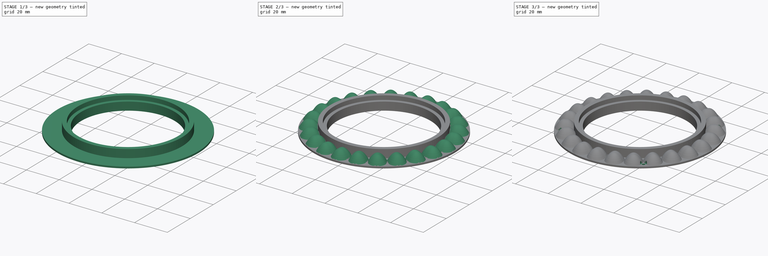
[diagram: build sequence overview — one tinted view per stage of 3, left to right]
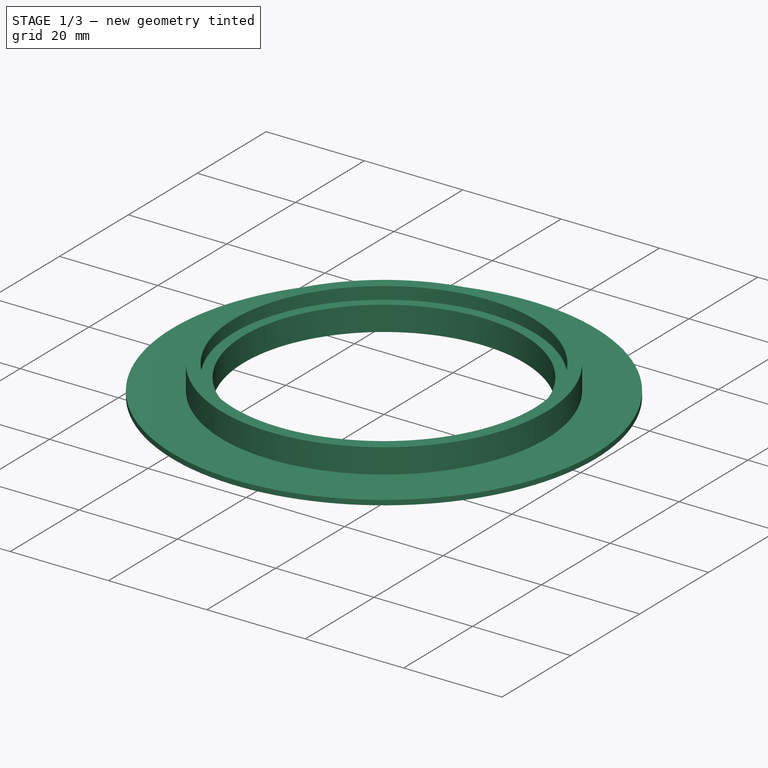
[diagram: stage 1 of 3 — iso view after this stage's code; geometry added in this stage tinted green]
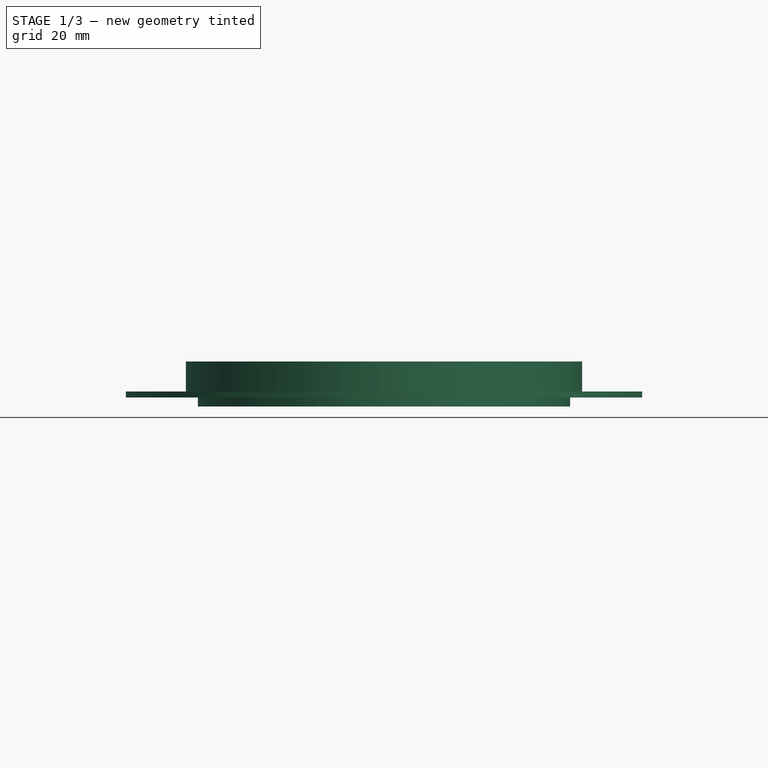
[diagram: stage 1 of 3 — front view after this stage's code; geometry added in this stage tinted green]
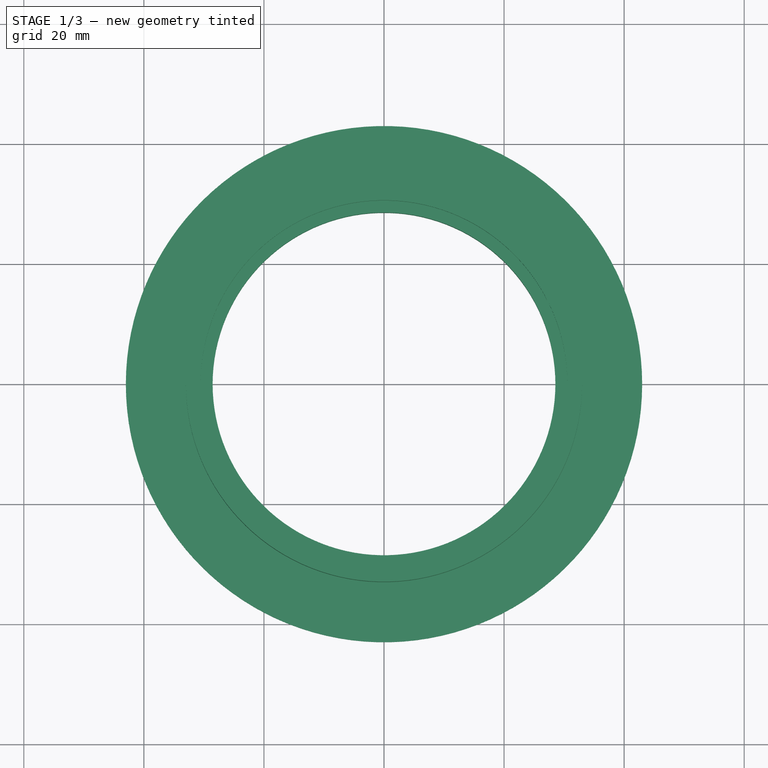
[diagram: stage 1 of 3 — top view after this stage's code; geometry added in this stage tinted green]
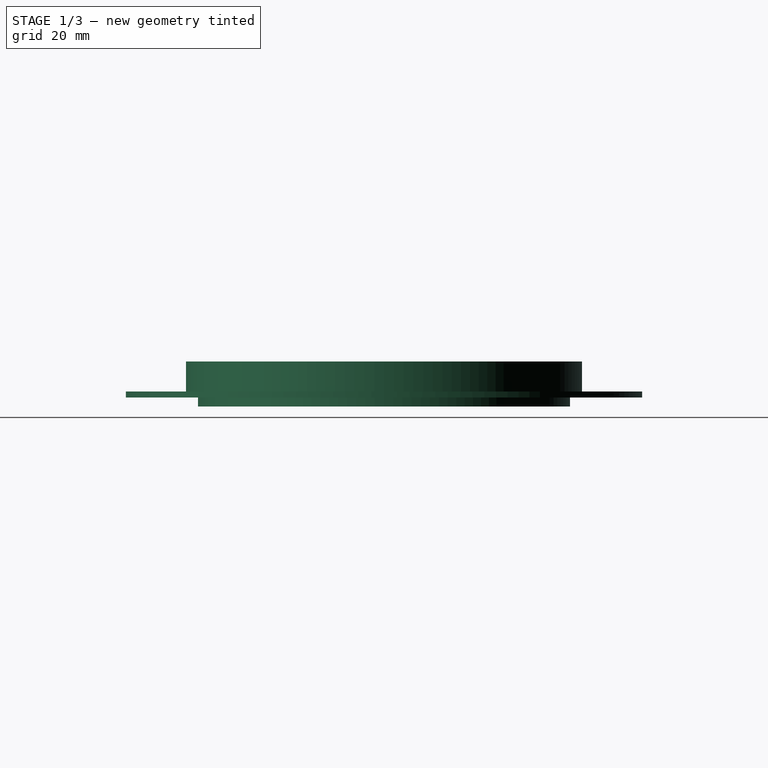
[diagram: stage 1 of 3 — right view after this stage's code; geometry added in this stage tinted green]
FCSTD DOCUMENT  (FreeCAD 0.21R33771 (Git))
Label: lens
License: All rights reserved
LicenseURL: https://en.wikipedia.org/wiki/All_rights_reserved
objects: Sketcher::SketchObject×4, PartDesign::Pad×2, PartDesign::Revolution×2, PartDesign::Mirrored×2, PartDesign::PolarPattern×2, PartDesign::Body×2, PartDesign::MultiTransform×2, PartDesign::Plane×1, PartDesign::Hole×1, App::Part×1
note: 23 computed .brp shape members not serialized (recipe doc carries the construction recipe); baked Part::Feature solids carry a one-line shape summary decoded from their .brp

FEATURE [Sketcher::SketchObject] Sketch
  FullyConstrained = true
  MapMode = 5
  Support = -> [XY_Plane]
  sketch-geometry (2):
    g0: Circle CenterX=0 CenterY=0 CenterZ=0 NormalX=0 NormalY=0 NormalZ=1 AngleXU=0 Radius=31.5
    g1: Circle CenterX=0 CenterY=0 CenterZ=0 NormalX=0 NormalY=0 NormalZ=1 AngleXU=0 Radius=43
  constraints (4):
    c: Coincident(g0,g-1)
    c: Diameter(g0) = 63
    c: Coincident(g1,g0)
    c: Diameter(g1) = 86
FEATURE [PartDesign::Pad] Pad
  Direction = (0,0,1)
  Length = 1
  Length2 = 10
  Profile = -> Sketch
  ReferenceAxis = -> Sketch [N_Axis]
  Reversed = true
  Type = 0
FEATURE [PartDesign::Mirrored] Mirrored
  MirrorPlane = -> DatumPlane001
FEATURE [PartDesign::Mirrored] Mirrored001
  MirrorPlane = -> YZ_Plane
FEATURE [Sketcher::SketchObject] Sketch003
  AttachmentOffset = pos=(0,0,10) rot=(0,0,1;0rad)
  FullyConstrained = true
  MapMode = 5
  Placement = pos=(0,0,10) rot=(0,0,1;0rad)
  Support = -> [XY_Plane]
  sketch-geometry (2):
    g0: Circle CenterX=-31.9761 CenterY=-24.5361 CenterZ=0 NormalX=0 NormalY=0 NormalZ=1 AngleXU=0 Radius=0.8
    g1: LineSegment StartX=-31.9761 StartY=-24.5361 StartZ=0 EndX=-3.6e-15 EndY=0 EndZ=0
  constraints (5):
    c: Diameter(g0) = 1.6
    c: Coincident(g1,g0)
    c: Coincident(g1,g-1)
    c: Angle(g1,g-1) = 2.48709
    c: Distance(g1) = 40.305
FEATURE [PartDesign::PolarPattern] PolarPattern001
  Angle = 270
  Axis = -> Z_Axis
  Occurrences = 4
  Reversed = true
FEATURE [Sketcher::SketchObject] Sketch004
  FullyConstrained = true
  MapMode = 5
  Placement = pos=(0,0,0) rot=(1,0,0;1.5708rad)
  Support = -> [XZ_Plane003]
  sketch-geometry (8):
    g0: LineSegment StartX=-33 StartY=0 StartZ=0 EndX=-33 EndY=5 EndZ=0
    g1: LineSegment StartX=-33 StartY=5 StartZ=0 EndX=-30.55 EndY=5 EndZ=0
    g2: LineSegment StartX=-30.55 StartY=5 StartZ=0 EndX=-30.55 EndY=2.5 EndZ=0
    g3: LineSegment StartX=-33 StartY=0 StartZ=0 EndX=-31 EndY=0 EndZ=0
    g4: LineSegment StartX=-31 StartY=0 StartZ=0 EndX=-31 EndY=-2.5 EndZ=0
    g5: LineSegment StartX=-31 StartY=-2.5 StartZ=0 EndX=-28.55 EndY=-2.5 EndZ=0
    g6: LineSegment StartX=-30.55 StartY=2.5 StartZ=0 EndX=-28.55 EndY=2.5 EndZ=0
    g7: LineSegment StartX=-28.55 StartY=2.5 StartZ=0 EndX=-28.55 EndY=-2.5 EndZ=0
  constraints (26):
    c: PointOnObject(g0,g-1)
    c: Vertical(g0)
    c: Coincident(g1,g0)
    c: Horizontal(g1)
    c: Coincident(g2,g1)
    c: Vertical(g2)
    c: Coincident(g3,g0)
    c: PointOnObject(g3,g-1)
    c: Coincident(g4,g3)
    c: Vertical(g4)
    c: Coincident(g5,g4)
    c: Horizontal(g5)
    c: Coincident(g6,g2)
    c: Horizontal(g6)
    c: Coincident(g7,g6)
    c: Coincident(g7,g5)
    c: Vertical(g7)
    c: Vertical(g6,g5)
    c: DistanceX(g4,g-1) = 31
    c: DistanceX(g0,g4) = 2
    c: DistanceY(g0,g0) = 5
    c: DistanceY(g2,g1) = 2.5
    c: DistanceY(g4,g3) = 2.5
    c: DistanceX(g1,g-1) = 30.55
    c: DistanceX(g0,g1) = 2.45
    c: DistanceX(g4,g5) = 2.45
FEATURE [PartDesign::Revolution] Revolution
  Angle = 360
  Axis = (0,-2e-16,1)
  Base = (0,0,0)
  Placement = pos=(0,0,0) rot=(1,0,0;1.5708rad)
  Profile = -> Sketch004
  ReferenceAxis = -> Sketch004 [V_Axis]
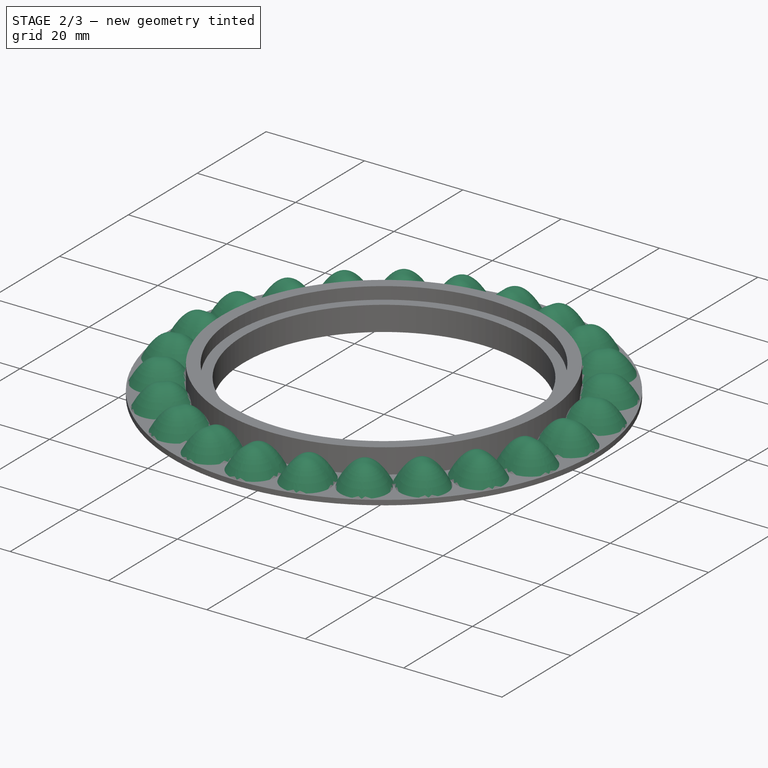
[diagram: stage 2 of 3 — iso view after this stage's code; geometry added in this stage tinted green]
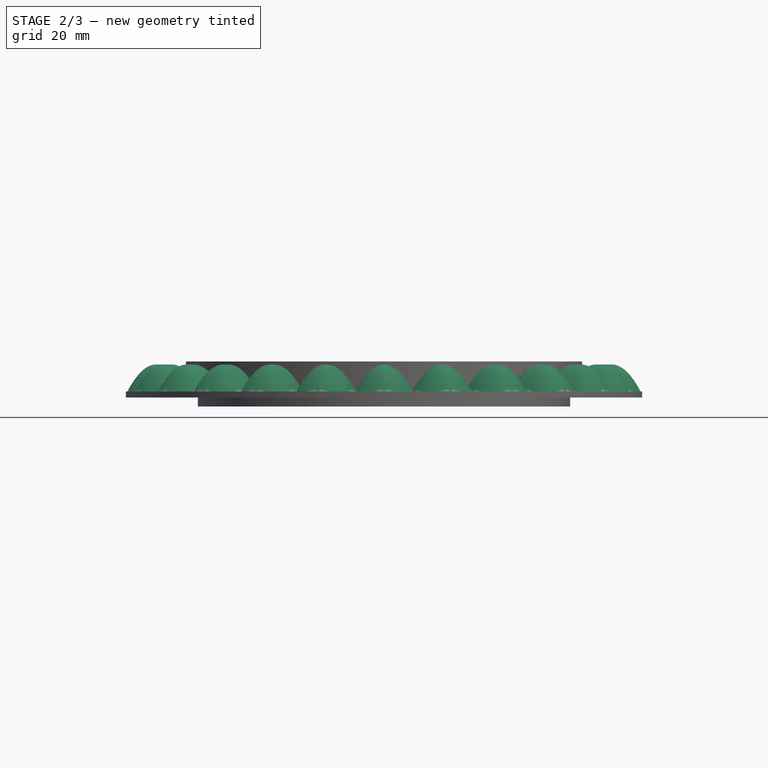
[diagram: stage 2 of 3 — front view after this stage's code; geometry added in this stage tinted green]
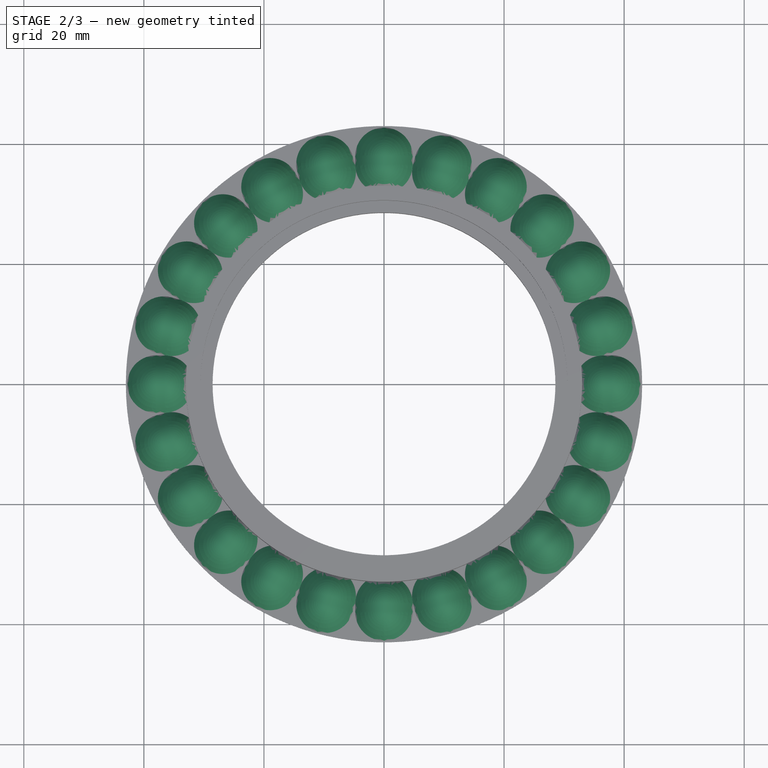
[diagram: stage 2 of 3 — top view after this stage's code; geometry added in this stage tinted green]
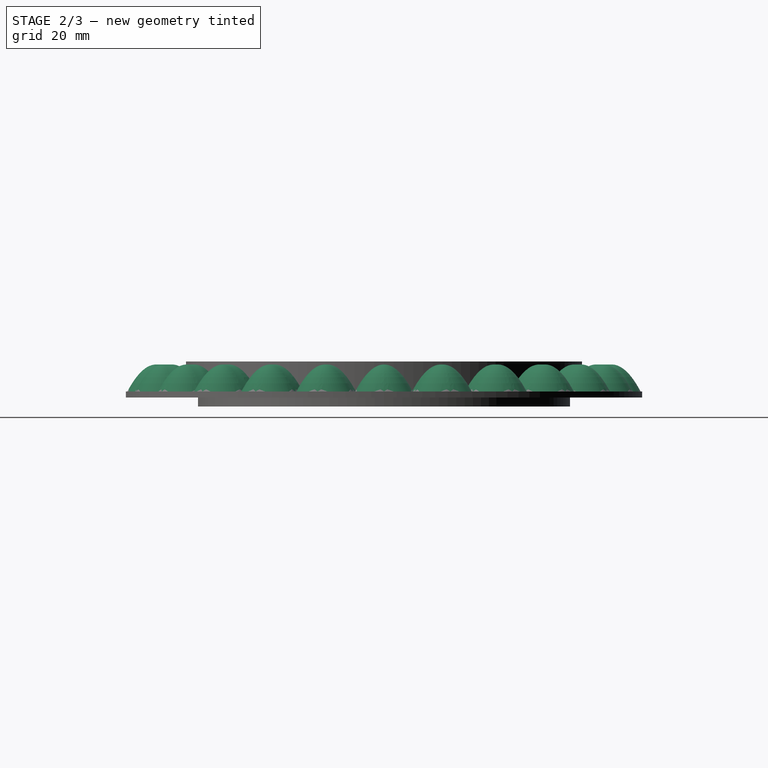
[diagram: stage 2 of 3 — right view after this stage's code; geometry added in this stage tinted green]
FEATURE [PartDesign::Plane] DatumPlane001
  AttachmentOffset = pos=(0,0,37.25) rot=(0,0,1;0rad)
  Length = 99.1149
  MapMode = 5
  Placement = pos=(0,-37.25,-8.3e-15) rot=(1,0,0;1.5708rad)
  ResizeMode = 0
  Support = -> [XZ_Plane]
  Width = 63.1149
FEATURE [Sketcher::SketchObject] Sketch002
  AttachmentOffset = pos=(0,0,0.7) rot=(0,0,1;0rad)
  FullyConstrained = true
  MapMode = 5
  Placement = pos=(0,-37.95,-8.4e-15) rot=(1,0,0;1.5708rad)
  Support = -> [DatumPlane001]
  sketch-geometry (5):
    g0: ArcOfParabola CenterX=0 CenterY=4.5 CenterZ=0 NormalX=0 NormalY=0 NormalZ=1 Focal=1.28 AngleXU=-1.5708 StartAngle=-4.8 EndAngle=0
    g1: GeomPoint X=0 Y=3.22 Z=0
    g2: LineSegment StartX=0 StartY=4.5 StartZ=0 EndX=0 EndY=3.22 EndZ=0
    g3: LineSegment StartX=-4.8 StartY=-9e-16 StartZ=0 EndX=0 EndY=-9e-16 EndZ=0
    g4: LineSegment StartX=0 StartY=-9e-16 StartZ=0 EndX=0 EndY=4.5 EndZ=0
  constraints (12):
    c: InternalAlignment(g1,g0)
    c: InternalAlignment(g2,g0)
    c: DistanceX(g0,g0) = 4.8
    c: DistanceY(g0,g0) = 4.5
    c: Coincident(g3,g0)
    c: Horizontal(g3)
    c: Coincident(g4,g3)
    c: Coincident(g4,g0)
    c: Coincident(g3,g-1)
    c: PointOnObject(g0,g4)
    c: PointOnObject(g0,g-2)
    c: PointOnObject(g1,g4)
FEATURE [PartDesign::Revolution] Revolution001
  Angle = 90
  Axis = (0,-2e-16,1)
  Base = (0,-37.95,-8.4e-15)
  BaseFeature = -> Pad
  Profile = -> Sketch002
  ReferenceAxis = -> Sketch002 [V_Axis]
FEATURE [PartDesign::Pad] Pad002
  BaseFeature = -> Revolution001
  Direction = (0,-1,-2e-16)
  Length = 10
  Length2 = 10
  Profile = -> Sketch002
  ReferenceAxis = -> Sketch002 [N_Axis]
  Reversed = true
  Type = 3
  UpToFace = -> DatumPlane001 [Plane]
FEATURE [PartDesign::Body] Body001  label="Körper001"
  Group = -> [Sketch004,Revolution]
  Origin = -> Origin003
  Placement = pos=(0,0,-4) rot=(0,1,0;3.14159rad)
  Tip = -> Revolution
FEATURE [PartDesign::PolarPattern] PolarPattern
  Angle = 360
  Axis = -> Z_Axis
  Occurrences = 24
FEATURE [PartDesign::MultiTransform] MultiTransform
  BaseFeature = -> Pad002
  Originals = -> [Pad002,Revolution001]
  Transformations = -> [Mirrored,Mirrored001,PolarPattern]
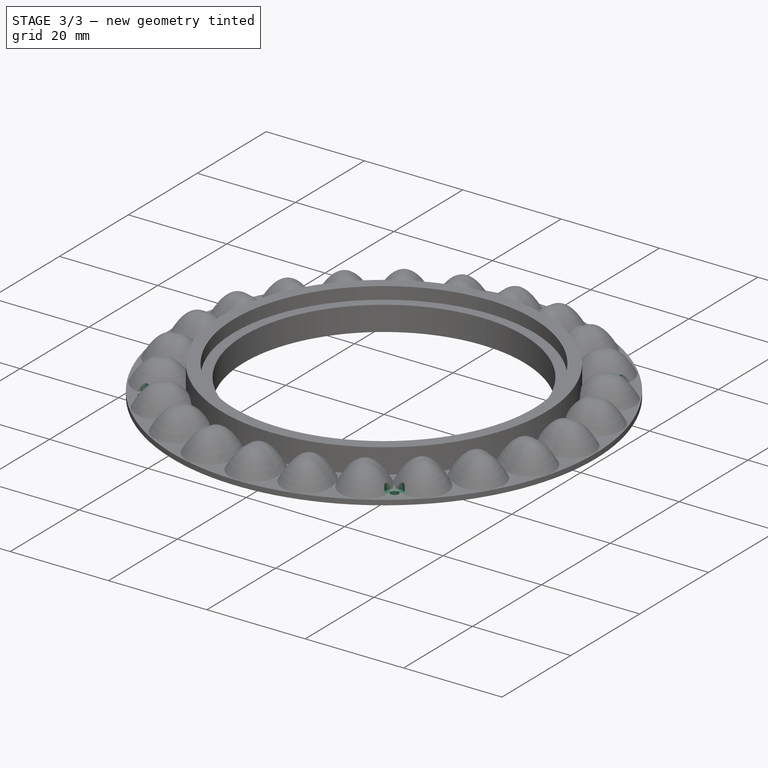
[diagram: stage 3 of 3 — iso view after this stage's code; geometry added in this stage tinted green]
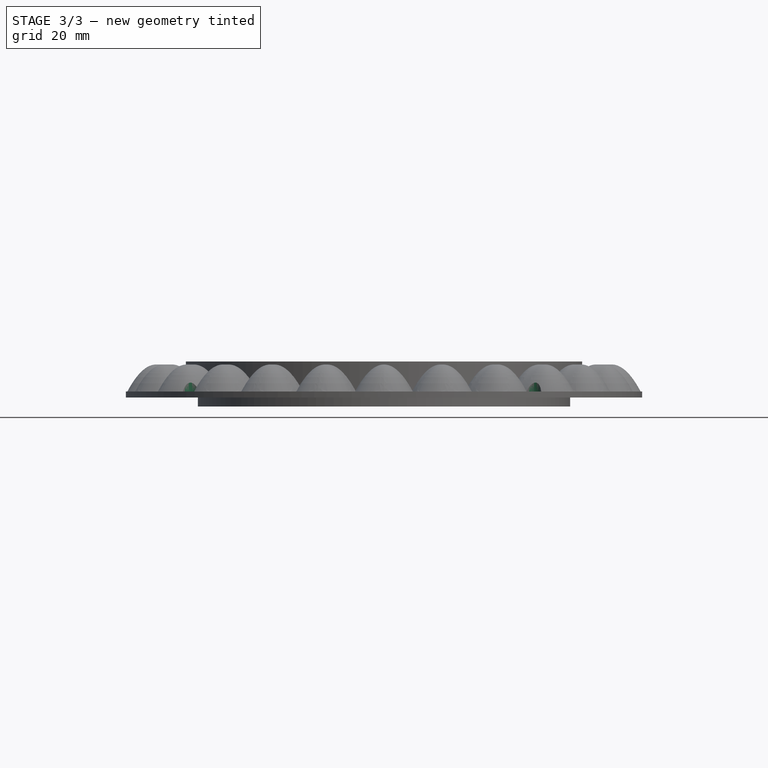
[diagram: stage 3 of 3 — front view after this stage's code; geometry added in this stage tinted green]
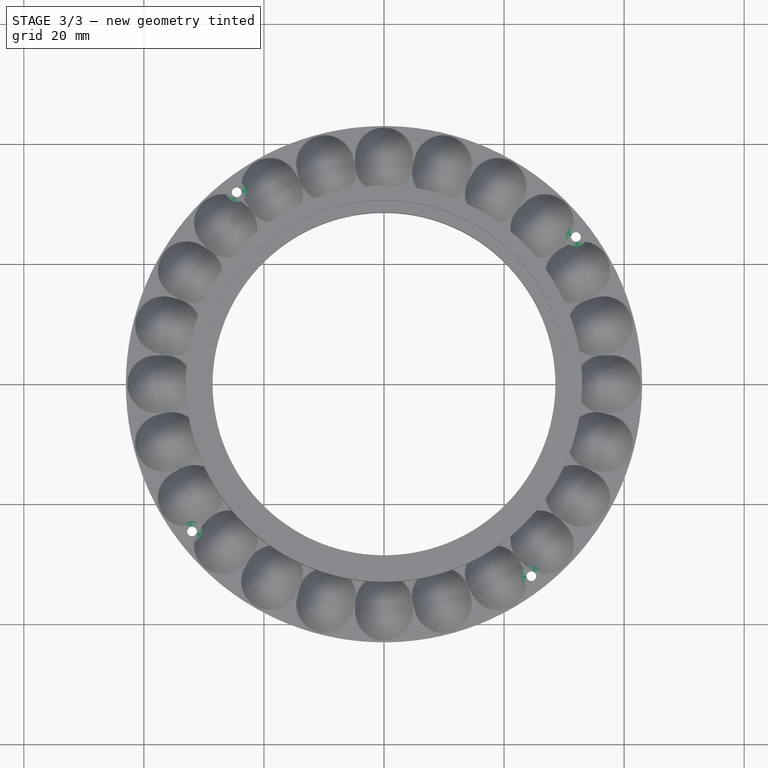
[diagram: stage 3 of 3 — top view after this stage's code; geometry added in this stage tinted green]
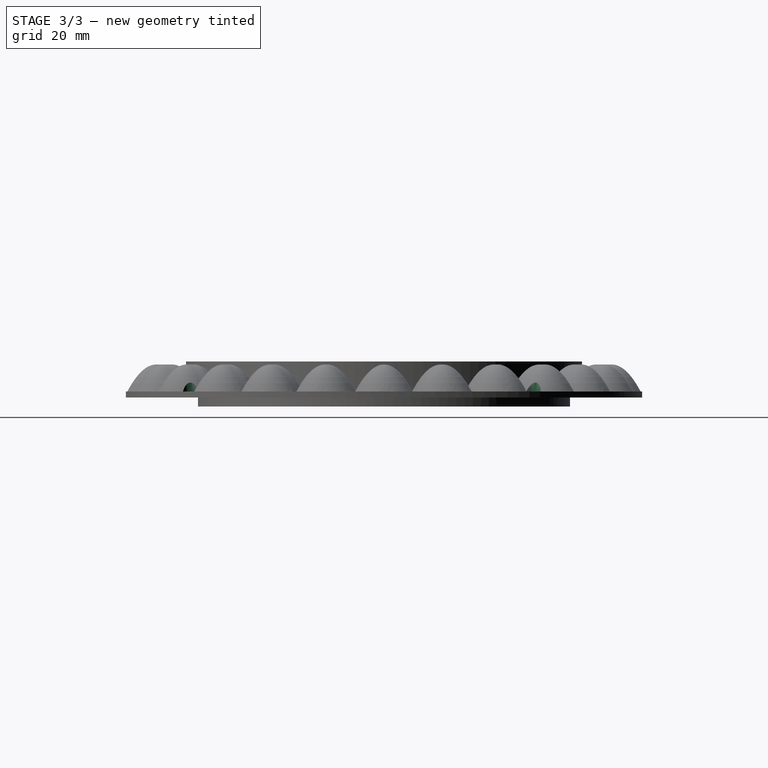
[diagram: stage 3 of 3 — right view after this stage's code; geometry added in this stage tinted green]
FEATURE [PartDesign::Hole] Hole
  BaseFeature = -> MultiTransform
  CustomThreadClearance = 0
  Depth = 245.976
  DepthType = 1
  Diameter = 1.6
  DrillForDepth = false
  DrillPoint = 1
  DrillPointAngle = 118
  HoleCutCountersinkAngle = 90
  HoleCutCustomValues = false
  HoleCutDepth = 10
  HoleCutDiameter = 3.4
  HoleCutType = 1
  ModelThread = false
  Profile = -> Sketch003
  Tapered = false
  TaperedAngle = 90
  ThreadClass = 0
  ThreadDepth = 245.976
  ThreadDepthType = 0
  ThreadDirection = 0
  ThreadFit = 0
  ThreadSize = 0
  ThreadType = 0
  Threaded = false
  UseCustomThreadClearance = false
FEATURE [PartDesign::MultiTransform] MultiTransform001
  BaseFeature = -> Hole
  Originals = -> [Hole]
  Transformations = -> [PolarPattern001]
FEATURE [PartDesign::Body] Body  label="Körper"
  Group = -> [Sketch,Pad,DatumPlane001,Sketch002,Revolution001,Pad002,MultiTransform,Mirrored,PolarPattern,Mirrored001,Sketch003,Hole,MultiTransform001,PolarPattern001]
  Origin = -> Origin
  Tip = -> MultiTransform001
FEATURE [App::Part] Part
  Group = -> [Body,Body001]
  Material = -> Body
  Origin = -> Origin002
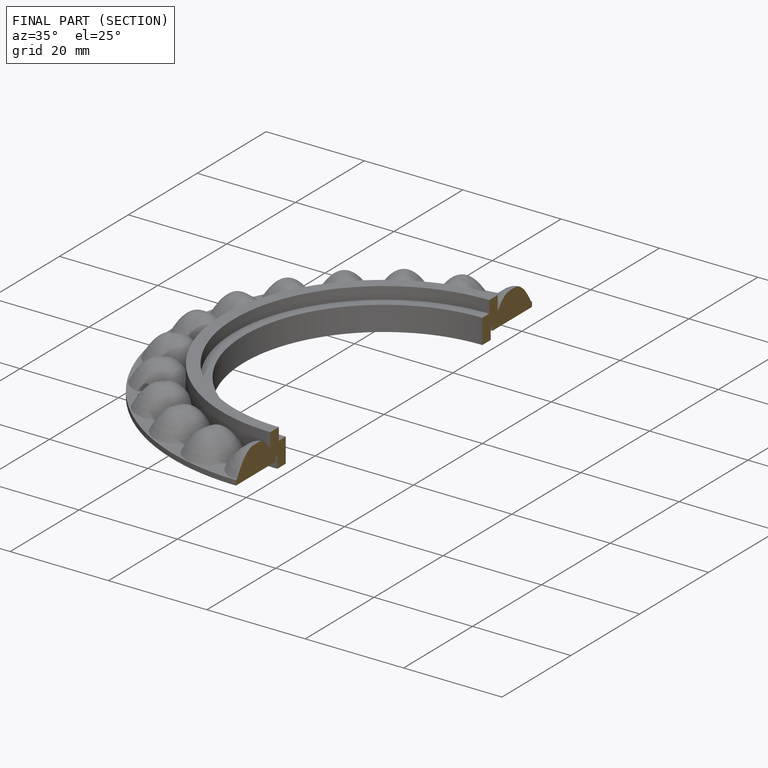
[diagram: finished part — half-section view (interior)]
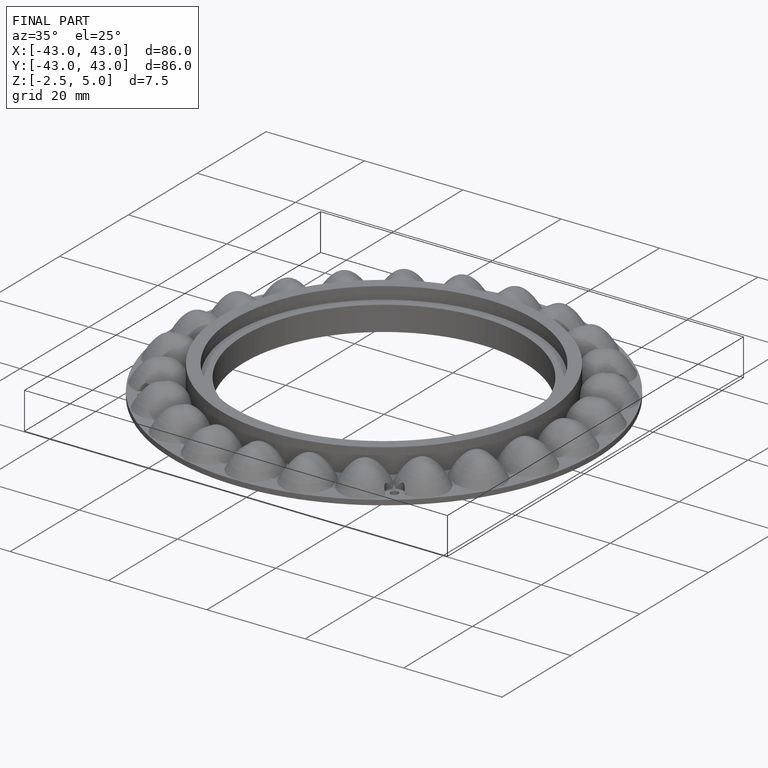
[diagram: finished part — iso view with bounding-box wireframe]
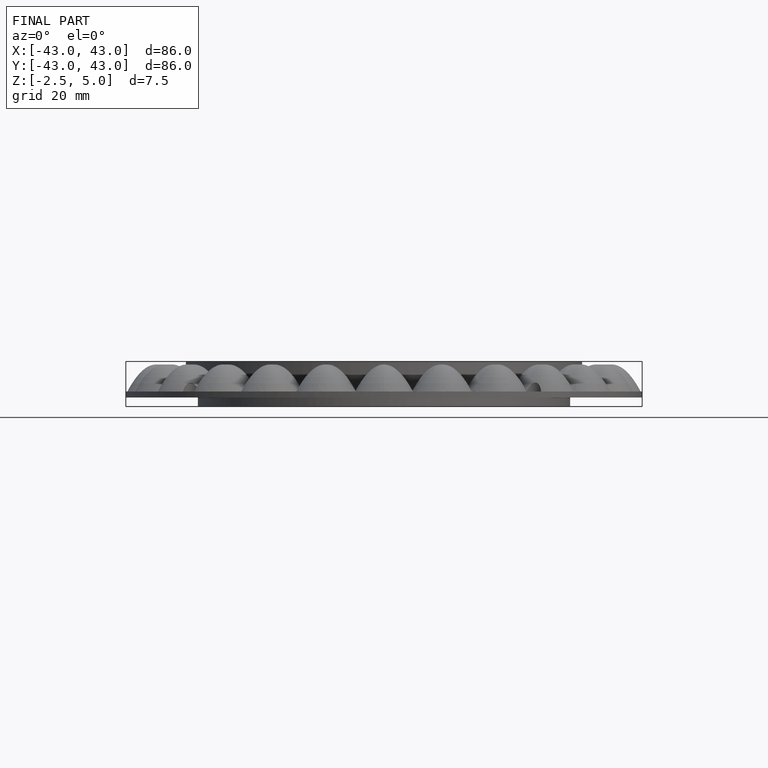
[diagram: finished part — front view with bounding-box wireframe]
